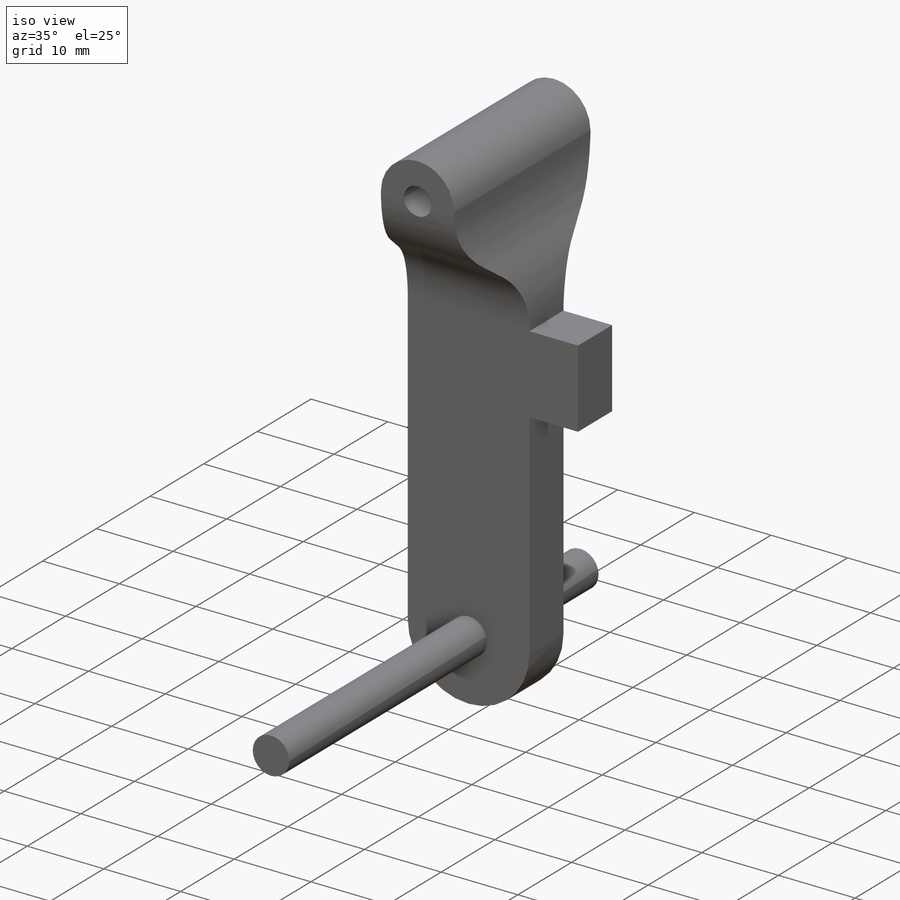
[diagram: iso view]
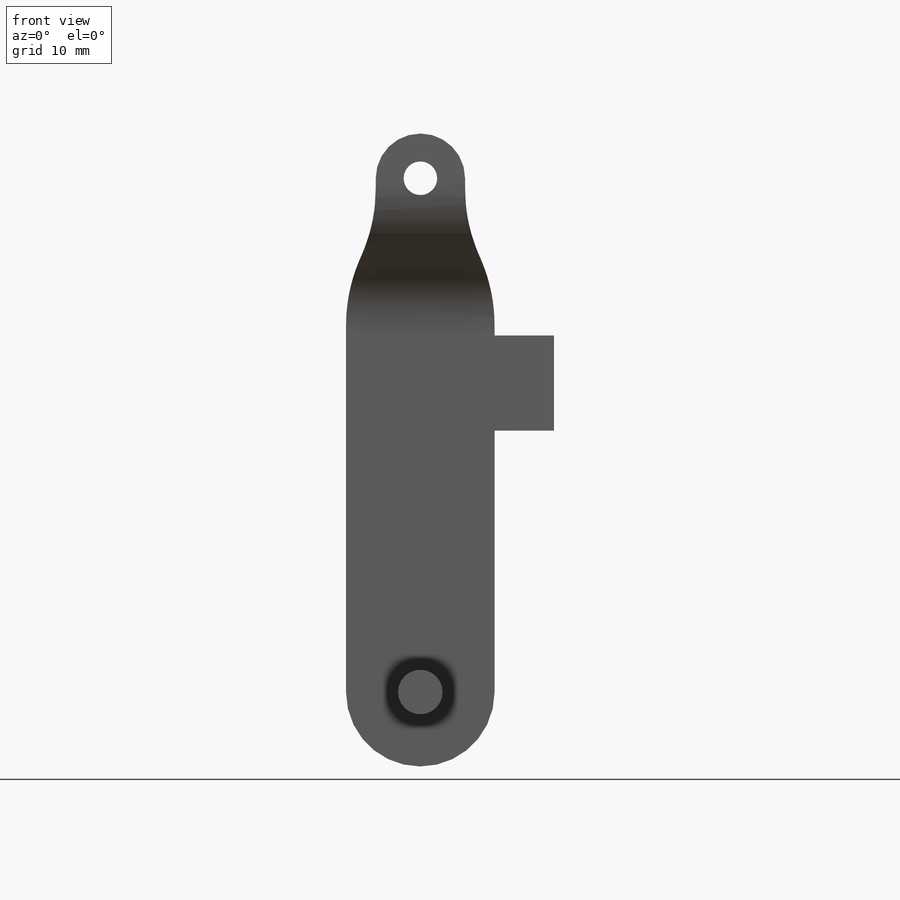
[diagram: front view]
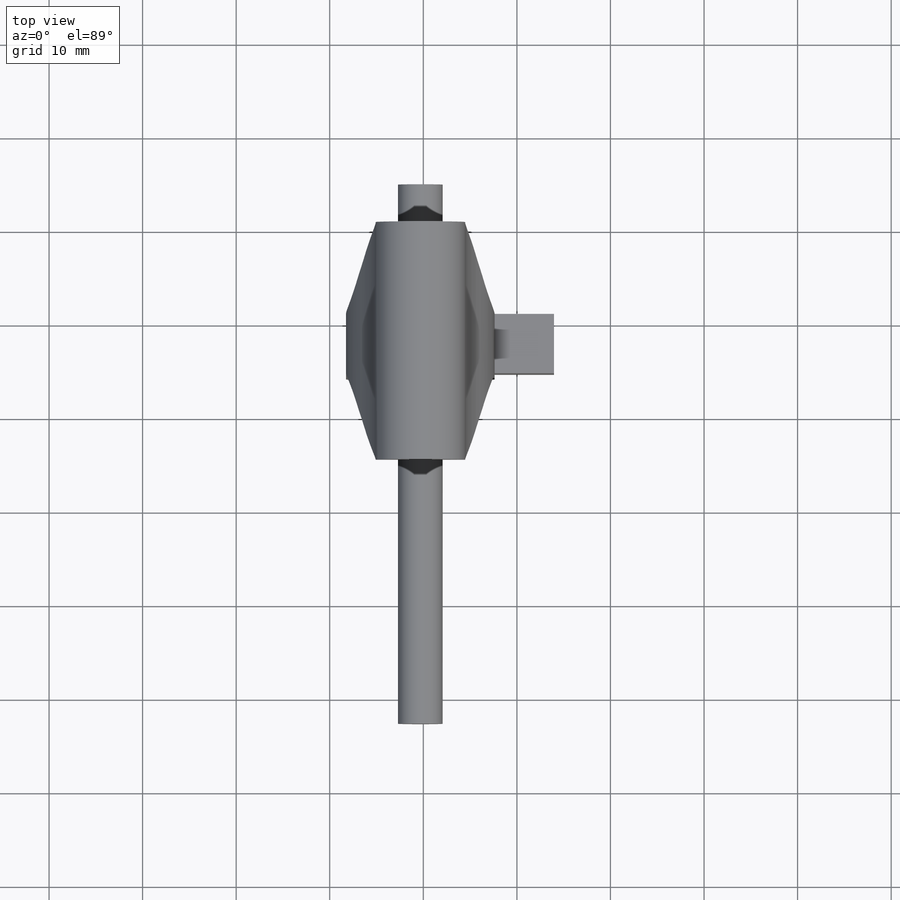
[diagram: top view]
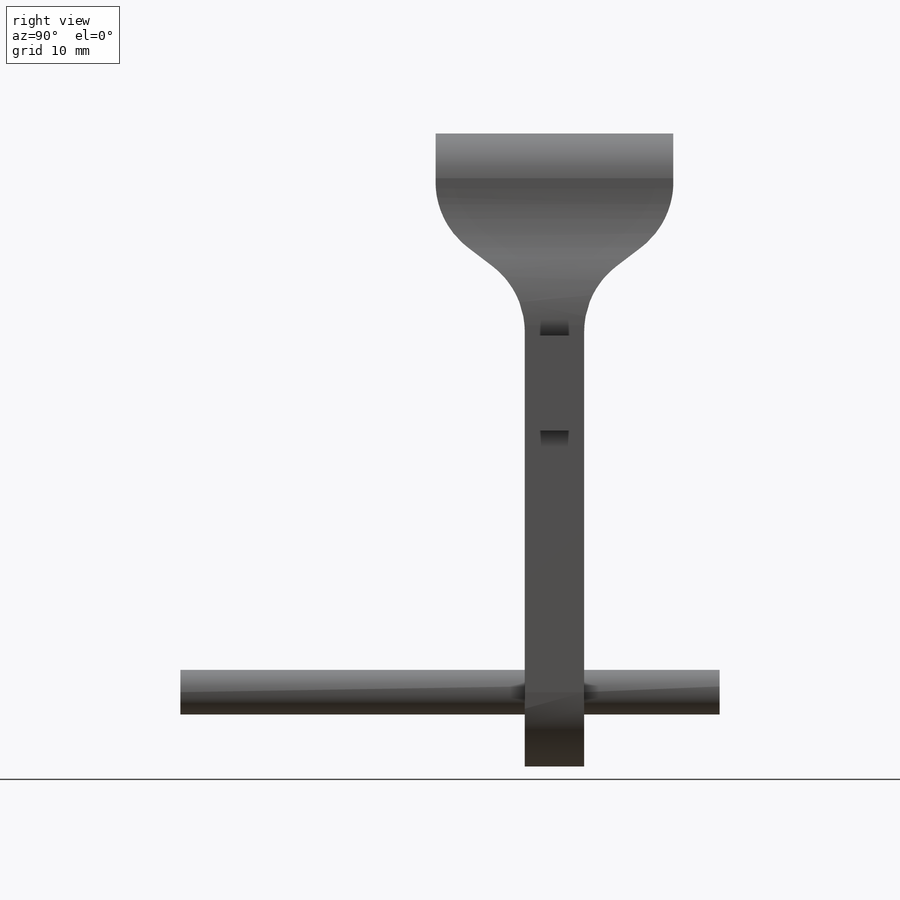
[diagram: right view]
SOLIDWORKS PART (.sldprt)
format: sldprt  version: not decoded by parser v0  size: 288,768 bytes
history: native  units: mm
features: sketch x5, extrude x4, cut_extrude x2, material x1, plane x1 (+13 scaffold rows collapsed)
feature tree (26):
  scaffold x13  (default folders/planes/origin — collapsed)
  material  "Material <not specified>"
  sketch  "Sketch1"  dims[D1=22.225mm D2=67.6402mm]
  extrude  "Boss-Extrude1"  Depth=25.4mm
  sketch  "Sketch2"  dims[c1.D1=~4.226333mm c1.D3=~2.808659mm c1.D7=~9.021651mm c1.D9=16.51mm c1.D10=15.875mm c1.D11=9.5504mm c1.D6=17.78mm c2.D1=4.7752mm c2.D2=13.6652mm c2.D3=40.9702mm c2.D4=40.9702mm c2.D5=18.415mm c2.D6=13.335mm c2.D7=35.8902mm c2.D8=21.59mm c2.D9=4.7752mm c3.D8=21.59mm c3.D9=4.7752mm c3.D10=22.225mm c3.D2=7.9502mm c3.D11=~24.267145mm c3.D6=4.7752mm]
  cut_extrude  "Cut-Extrude2"  Depth=25.4mm
  sketch  "Sketch4"  dims[c1.D3=8.763mm c1.D1=9.525mm c1.D2=9.525mm c2.D3=9.5504mm c2.D1=6.35mm c2.D2=9.525mm c2.D4=~62.453703mm]
  cut_extrude  "Cut-Extrude3"  [1 undecoded]
  extrude  "Point2"  [1 undecoded]
  extrude  "Point3"  [1 undecoded]
  plane  "Plane1"
  sketch  "Sketch5"
  extrude  "Boss-Extrude2"  Depth=6.35mm
  sketch  "Sketch6"  dims[D1=~2.742849mm]
decode coverage: 7 of 11 modeling features carry decoded parameters
note: ~ marks probable driven/reference dimensions
note: 3 parameter values undecoded
summary: no parameter record found for 3 features
note: suppression state not decoded; provenance and decode notes live in map.json
